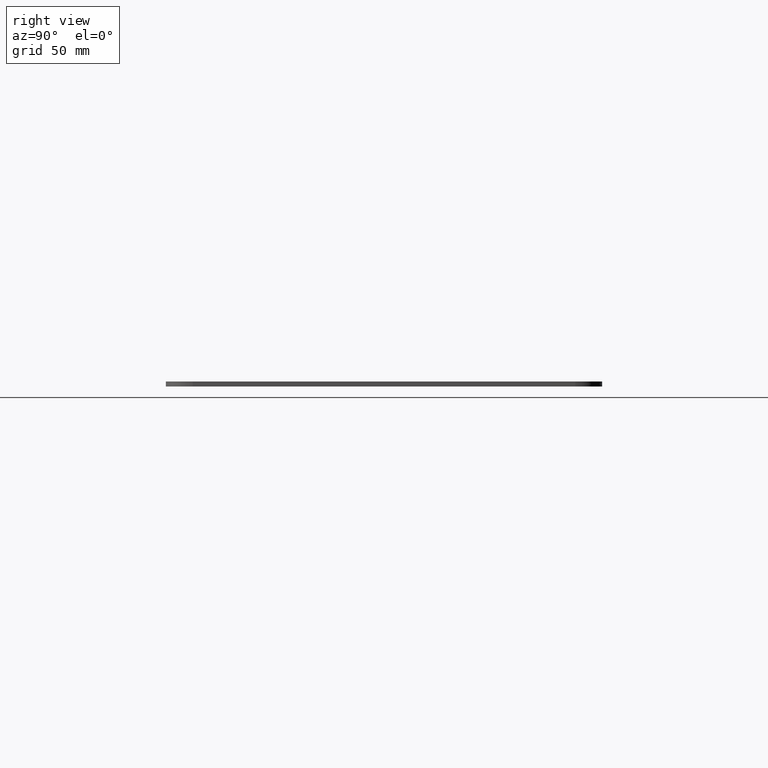
[diagram: clean part render]
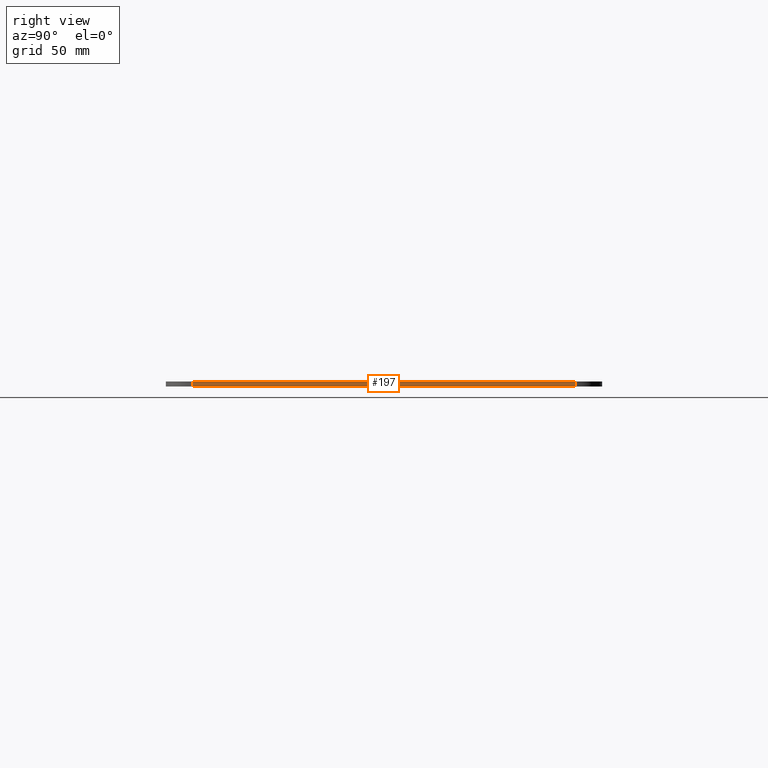
[diagram: same view with one face highlighted and labeled with its STEP entity id]
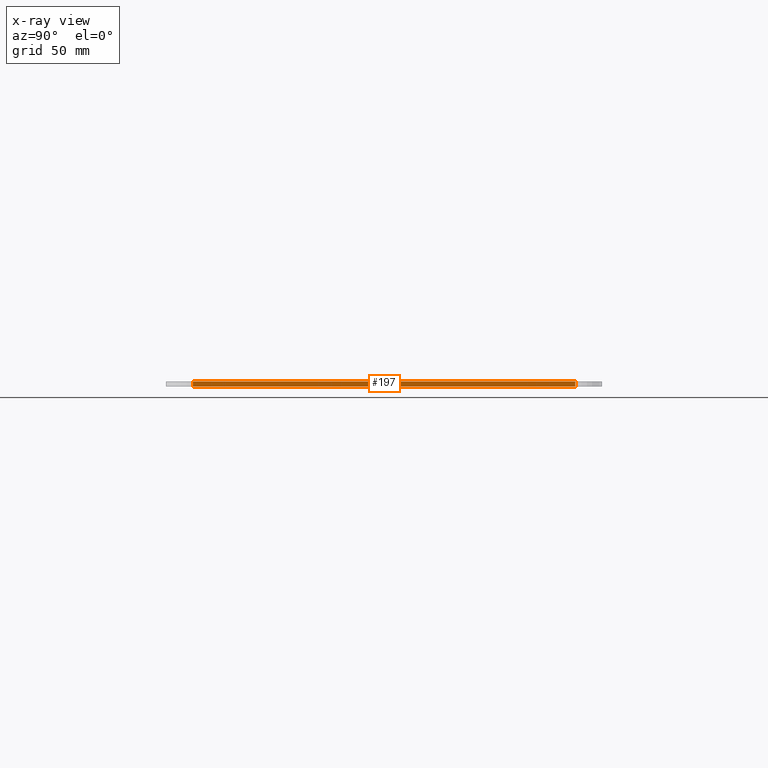
[diagram: x-ray of the same camera — body ghosted, the highlighted face saturated]
A machine part, right view. The second image highlights one B-rep face of the part: STEP entity #197.
The next image is the same camera in x-ray: the body ghosted, the highlighted face saturated — about 0% of this face is hidden behind the body in this view.
In plain terms, the highlighted planar face has unit normal (-1, 0, 0).
Its self-contained STEP definition (entity closure, byte-faithful):
#197=ADVANCED_FACE('',(#234),#226,.F.);
#226=PLANE('',#631);
#234=FACE_OUTER_BOUND('',#244,.T.);
#244=EDGE_LOOP('',(#350,#351,#352,#353));
#350=ORIENTED_EDGE('',*,*,#537,.T.);
#351=ORIENTED_EDGE('',*,*,#538,.F.);
#352=ORIENTED_EDGE('',*,*,#539,.F.);
#353=ORIENTED_EDGE('',*,*,#535,.T.);
#474=VERTEX_POINT('',#907);
#475=VERTEX_POINT('',#909);
#476=VERTEX_POINT('',#913);
#477=VERTEX_POINT('',#915);
#535=EDGE_CURVE('',#475,#474,#598,.T.);
#537=EDGE_CURVE('',#474,#476,#599,.T.);
#538=EDGE_CURVE('',#477,#476,#600,.T.);
#539=EDGE_CURVE('',#475,#477,#601,.T.);
#598=LINE('',#908,#614);
#599=LINE('',#912,#615);
#600=LINE('',#914,#616);
#601=LINE('',#916,#617);
#614=VECTOR('',#726,1.);
#615=VECTOR('',#731,1.);
#616=VECTOR('',#732,1.);
#617=VECTOR('',#733,1.);
#631=AXIS2_PLACEMENT_3D('',#917,#734,#735);
#726=DIRECTION('',(0.,0.,-1.));
#731=DIRECTION('',(0.,1.,0.));
#732=DIRECTION('',(0.,0.,-1.));
#733=DIRECTION('',(0.,1.,0.));
#734=DIRECTION('',(-1.,0.,0.));
#735=DIRECTION('',(0.,0.,1.));
#907=CARTESIAN_POINT('',(4175.,-2114.,0.));
#908=CARTESIAN_POINT('',(4175.,-2114.,3.));
#909=CARTESIAN_POINT('',(4175.,-2114.,3.));
#912=CARTESIAN_POINT('',(4175.,-2114.,0.));
#913=CARTESIAN_POINT('',(4175.,-1886.,0.));
#914=CARTESIAN_POINT('',(4175.,-1886.,3.));
#915=CARTESIAN_POINT('',(4175.,-1886.,3.));
#916=CARTESIAN_POINT('',(4175.,-2114.,3.));
#917=CARTESIAN_POINT('',(4175.,-2114.,3.));